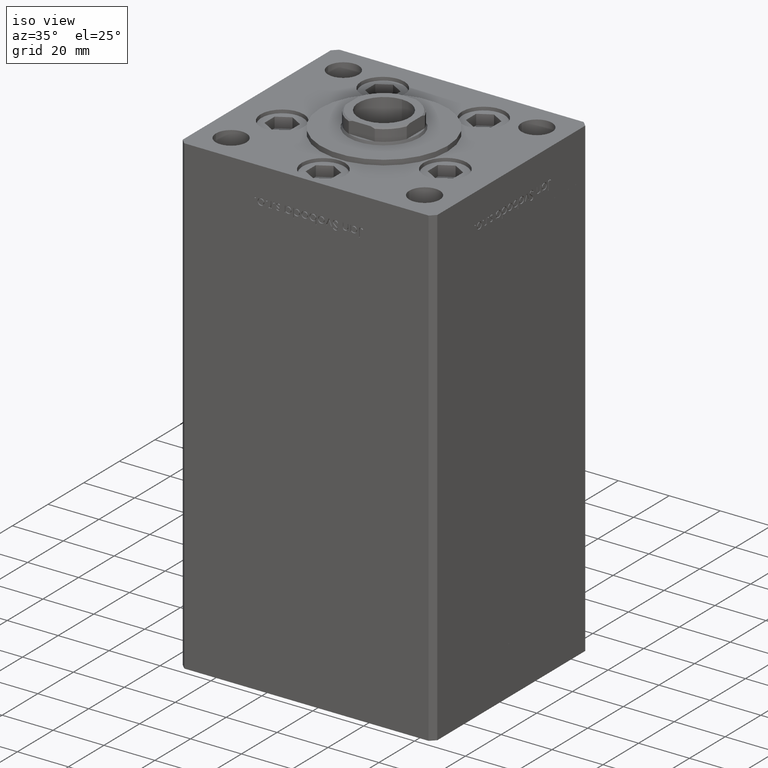
[diagram: clean part render]
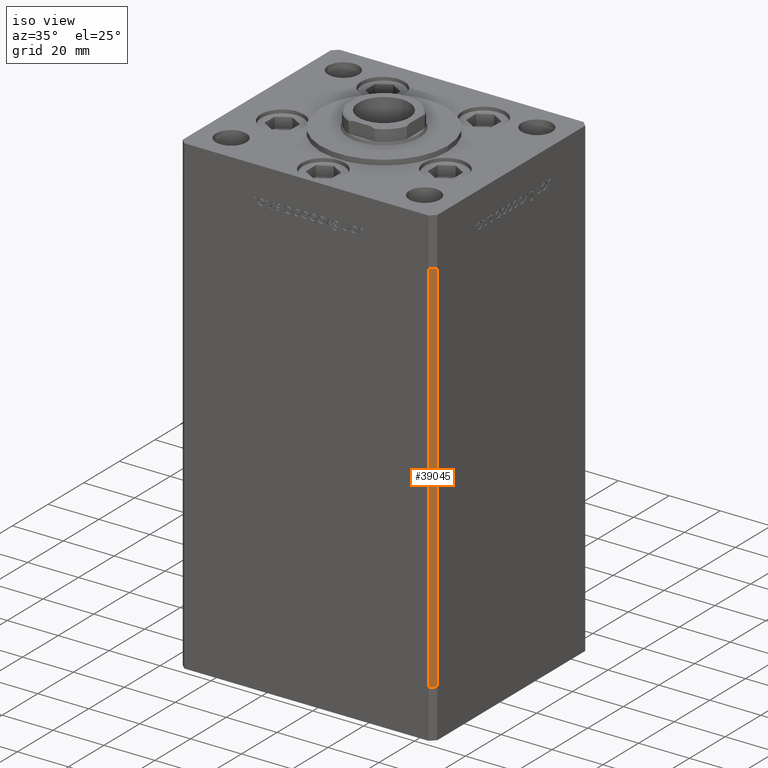
[diagram: same view with one face highlighted and labeled with its STEP entity id]
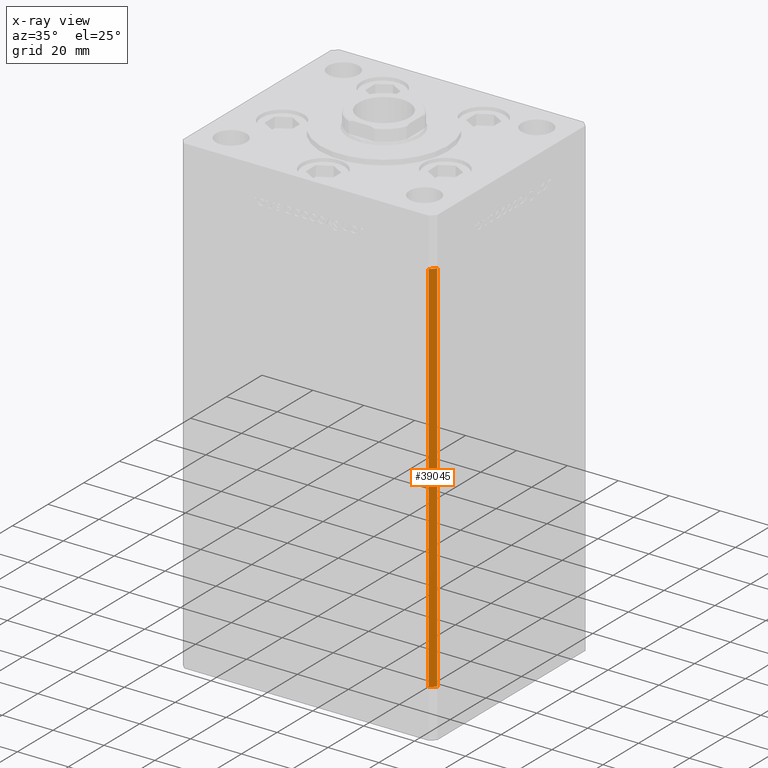
[diagram: x-ray of the same camera — body ghosted, the highlighted face saturated]
A machine part, iso view. The second image highlights one B-rep face of the part: STEP entity #39045.
The next image is the same camera in x-ray: the body ghosted, the highlighted face saturated — about 0% of this face is hidden behind the body in this view.
In plain terms, the highlighted planar face has unit normal (0.7071, -0.7071, 0).
Its self-contained STEP definition (entity closure, byte-faithful):
#21 = EDGE_CURVE ( 'NONE', #34495, #701, #48422, .T. ) ;
#188 = ORIENTED_EDGE ( 'NONE', *, *, #9160, .F. ) ;
#701 = VERTEX_POINT ( 'NONE', #21020 ) ;
#711 = CARTESIAN_POINT ( 'NONE',  ( 47.99999999999998579, -43.50000000000000000, 0.000000000000000000 ) ) ;
#2885 = ORIENTED_EDGE ( 'NONE', *, *, #29716, .T. ) ;
#4557 = EDGE_CURVE ( 'NONE', #23938, #29845, #27217, .T. ) ;
#5050 = CARTESIAN_POINT ( 'NONE',  ( 49.99999999999998579, -41.49999999999999289, 148.5000000000000000 ) ) ;
#5676 = AXIS2_PLACEMENT_3D ( 'NONE', #26273, #25756, #17618 ) ;
#6141 = ORIENTED_EDGE ( 'NONE', *, *, #21, .T. ) ;
#7762 = CARTESIAN_POINT ( 'NONE',  ( 49.99999999999998579, -41.49999999999999289, 148.5000000000000000 ) ) ;
#9160 = EDGE_CURVE ( 'NONE', #34495, #23938, #13164, .T. ) ;
#13164 = LINE ( 'NONE', #5050, #44215 ) ;
#17618 = DIRECTION ( 'NONE',  ( 0.7071067811865474617, 0.7071067811865474617, 0.000000000000000000 ) ) ;
#17722 = CARTESIAN_POINT ( 'NONE',  ( 49.99999999999998579, -41.49999999999999289, 0.000000000000000000 ) ) ;
#17874 = PLANE ( 'NONE',  #5676 ) ;
#18819 = CARTESIAN_POINT ( 'NONE',  ( 49.99999999999998579, -41.49999999999999289, 0.000000000000000000 ) ) ;
#19630 = DIRECTION ( 'NONE',  ( -0.000000000000000000, -0.000000000000000000, -1.000000000000000000 ) ) ;
#21020 = CARTESIAN_POINT ( 'NONE',  ( 47.99999999999998579, -43.50000000000000000, 148.5000000000000000 ) ) ;
#23724 = VECTOR ( 'NONE', #36112, 1000.000000000000114 ) ;
#23938 = VERTEX_POINT ( 'NONE', #17722 ) ;
#25756 = DIRECTION ( 'NONE',  ( 0.7071067811865475727, -0.7071067811865475727, 0.000000000000000000 ) ) ;
#26273 = CARTESIAN_POINT ( 'NONE',  ( 49.99999999999998579, -41.49999999999999289, 148.5000000000000000 ) ) ;
#27033 = ORIENTED_EDGE ( 'NONE', *, *, #4557, .F. ) ;
#27217 = LINE ( 'NONE', #18819, #48167 ) ;
#28169 = VECTOR ( 'NONE', #19630, 1000.000000000000000 ) ;
#29716 = EDGE_CURVE ( 'NONE', #701, #29845, #39846, .T. ) ;
#29845 = VERTEX_POINT ( 'NONE', #711 ) ;
#30911 = DIRECTION ( 'NONE',  ( -0.7071067811865474617, -0.7071067811865474617, 0.000000000000000000 ) ) ;
#33137 = DIRECTION ( 'NONE',  ( -0.000000000000000000, -0.000000000000000000, -1.000000000000000000 ) ) ;
#34495 = VERTEX_POINT ( 'NONE', #51596 ) ;
#36112 = DIRECTION ( 'NONE',  ( -0.7071067811865474617, -0.7071067811865474617, 0.000000000000000000 ) ) ;
#39045 = ADVANCED_FACE ( 'NONE', ( #41770 ), #17874, .T. ) ;
#39582 = CARTESIAN_POINT ( 'NONE',  ( 47.99999999999998579, -43.50000000000000000, 148.5000000000000000 ) ) ;
#39846 = LINE ( 'NONE', #39582, #28169 ) ;
#41770 = FACE_OUTER_BOUND ( 'NONE', #49502, .T. ) ;
#44215 = VECTOR ( 'NONE', #33137, 1000.000000000000000 ) ;
#48167 = VECTOR ( 'NONE', #30911, 1000.000000000000114 ) ;
#48422 = LINE ( 'NONE', #7762, #23724 ) ;
#49502 = EDGE_LOOP ( 'NONE', ( #27033, #188, #6141, #2885 ) ) ;
#51596 = CARTESIAN_POINT ( 'NONE',  ( 49.99999999999998579, -41.49999999999999289, 148.5000000000000000 ) ) ;